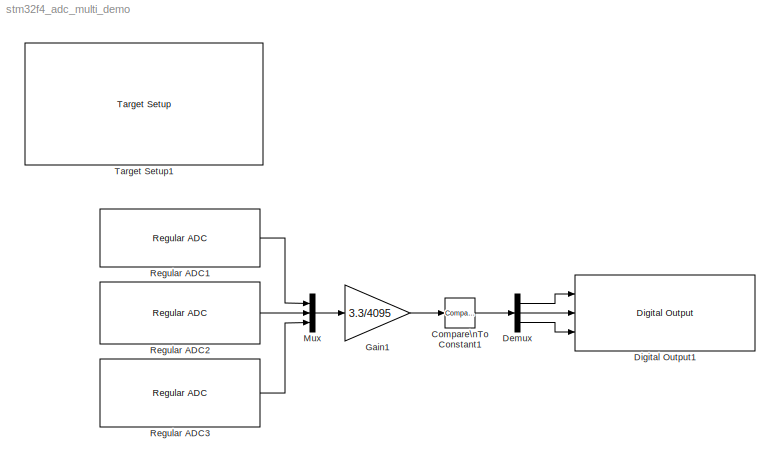
MODEL stm32f4_adc_multi_demo
KIND model
CONFIG PreLoadFcn = waijung.modelPreload; % Required for working with Waijung Blockset. Do not remove.
BLOCK [Reference] Compare\nTo Constant1  REF=simulink/Logic and Bit\nOperations/Compare\nTo Constant
  FunctionWithSeparateData = off
  LogicOutDataTypeMode = boolean
  Ports = [1, 1]
  RTWMemSecDataConstants = Inherit from model
  RTWMemSecDataInternal = Inherit from model
  RTWMemSecDataParameters = Inherit from model
  RTWMemSecFuncExecute = Inherit from model
  RTWMemSecFuncInitTerm = Inherit from model
  ShowPortLabels = FromPortIcon
  SourceBlock = simulink/Logic and Bit\nOperations/Compare\nTo Constant
  SourceType = Compare To Constant
  SystemSampleTime = -1
  ZeroCross = off
  const = 1.5
  relop = >=
BLOCK [Demux] Demux
  DisplayOption = bar
  Outputs = 3
  Ports = [1, 3]
BLOCK [Reference] Digital Output1  REF=stm32f4_io_lib/Digital Output
  Ports = [3]
  SourceBlock = stm32f4_io_lib/Digital Output
  SourceType = stm32f4_digital_output
  bitbandingstr = \n#define DigitalOutput1_D12 Peripheral_BB(GPIOD->ODR, 12)  /* Output pin */\n#define DigitalOutput1_D13 Peripheral_BB(GPIOD->ODR, 13)  /* Output pin */\n#define DigitalOutput1_D14 Peripheral_BB(GPIOD->ODR, 14)  /* Output pin */
  blockid = DigitalOutput1
  cinputportlabel = In1, In2
  coutputportlabel = 0
  enablecustomportlabel = off
  globalinit = off
  pinstr = GPIO_Pin_12 | GPIO_Pin_13 | GPIO_Pin_14
  port = D
  porttype = Push Pull
  porttypestr = PP
  sampletime = -1
  sampletimestr = 0.01
  speed = 100
  use_bitband = on
  use_pin0 = off
  use_pin1 = off
  use_pin10 = off
  use_pin11 = off
  use_pin12 = on
  use_pin13 = on
  use_pin14 = on
  use_pin15 = off
  use_pin2 = off
  use_pin3 = off
  use_pin4 = off
  use_pin5 = off
  use_pin6 = off
  use_pin7 = off
  use_pin8 = off
  use_pin9 = off
  usedpinarray = [0  0  0  0  0  0  0  0  0  0  0  0  1  1  1  0]
BLOCK [Gain] Gain1
  Gain = 3.3/4095
  OutDataType = fixdt(1, 16)
  OutDataTypeMode = single
  OutDataTypeStr = single
  OutScaling = 2^0
  ParamDataTypeStr = single
  ParameterDataType = fixdt(1, 16)
  ParameterDataTypeMode = single
  ParameterScaling = 2^0
  SaturateOnIntegerOverflow = off
BLOCK [Mux] Mux
  DisplayOption = bar
  Inputs = 3
  Ports = [3, 1]
BLOCK [Reference] Regular ADC1  REF=stm32f4_adc_lib/Regular ADC
  Ports = [0, 1]
  SourceBlock = stm32f4_adc_lib/Regular ADC
  SourceType = stm32f4_regular_adc
  adcmodule = 1
  blockid = RegularADC1
  chsamplingtime = Auto
  chsamplingtimestr = ADC_SampleTime_480Cycles
  cinputportlabel = 0
  coutputportlabel = Out1, Out2
  enablecustomportlabel = off
  outputdatatype = Single
  pinstr = GPIO_Pin_1
  prescaler = 2
  prescalerstr = ADC_Prescaler_Div2
  read_an0 = off
  read_an1 = on
  read_an10 = off
  read_an11 = off
  read_an12 = off
  read_an13 = off
  read_an14 = off
  read_an15 = off
  read_an16 = off
  read_an17 = off
  read_an18 = off
  read_an2 = off
  read_an3 = off
  read_an4 = off
  read_an5 = off
  read_an6 = off
  read_an7 = off
  read_an8 = off
  read_an9 = off
  sampletime = 0.01
  usedpinarray = [0  1  0  0  0  0  0  0  0  0  0  0  0  0  0  0  0  0  0]
  usedpinidarray = [1]
  usedpinidcount = 1
  usedportidarray = [0]
BLOCK [Reference] Regular ADC2  REF=stm32f4_adc_lib/Regular ADC
  Ports = [0, 1]
  SourceBlock = stm32f4_adc_lib/Regular ADC
  SourceType = stm32f4_regular_adc
  adcmodule = 2
  blockid = RegularADC2
  chsamplingtime = Auto
  chsamplingtimestr = ADC_SampleTime_480Cycles
  cinputportlabel = 0
  coutputportlabel = Out1, Out2
  enablecustomportlabel = off
  outputdatatype = Single
  pinstr = GPIO_Pin_2
  prescaler = 2
  prescalerstr = ADC_Prescaler_Div2
  read_an0 = off
  read_an1 = off
  read_an10 = off
  read_an11 = off
  read_an12 = off
  read_an13 = off
  read_an14 = off
  read_an15 = off
  read_an16 = off
  read_an17 = off
  read_an18 = off
  read_an2 = on
  read_an3 = off
  read_an4 = off
  read_an5 = off
  read_an6 = off
  read_an7 = off
  read_an8 = off
  read_an9 = off
  sampletime = 0.01
  usedpinarray = [0  0  1  0  0  0  0  0  0  0  0  0  0  0  0  0  0  0  0]
  usedpinidarray = [2]
  usedpinidcount = 1
  usedportidarray = [0]
BLOCK [Reference] Regular ADC3  REF=stm32f4_adc_lib/Regular ADC
  Ports = [0, 1]
  SourceBlock = stm32f4_adc_lib/Regular ADC
  SourceType = stm32f4_regular_adc
  adcmodule = 3
  blockid = RegularADC3
  chsamplingtime = Auto
  chsamplingtimestr = ADC_SampleTime_480Cycles
  cinputportlabel = 0
  coutputportlabel = Out1, Out2
  enablecustomportlabel = off
  outputdatatype = Single
  pinstr = GPIO_Pin_3
  prescaler = 2
  prescalerstr = ADC_Prescaler_Div2
  read_an0 = off
  read_an1 = off
  read_an10 = off
  read_an11 = off
  read_an12 = off
  read_an13 = off
  read_an14 = off
  read_an15 = off
  read_an16 = off
  read_an17 = off
  read_an18 = off
  read_an2 = off
  read_an3 = on
  read_an4 = off
  read_an5 = off
  read_an6 = off
  read_an7 = off
  read_an8 = off
  read_an9 = off
  sampletime = 0.01
  usedpinarray = [0  0  0  1  0  0  0  0  0  0  0  0  0  0  0  0  0  0  0]
  usedpinidarray = [3]
  usedpinidcount = 1
  usedportidarray = [0]
BLOCK [Reference] Target Setup1  REF=stm32f4_device_config_lib/Target Setup
  Ports = []
  Priority = 100
  SourceBlock = stm32f4_device_config_lib/Target Setup
  SourceType = stm32f4_target_setup
  assemblercontrolstr = $(patsubst %, -I%, .) -mcpu=cortex-m4 -mthumb -mthumb-interwork -mfloat-abi=hard -mfpu=fpv4-sp-d16 -ffast-math -Wall -Wextra -Ofast -Wa,-amhls=$(<:.s=.lst) -D__STACK_SIZE=$(STACK_SIZE) -D__HEAP_SIZE=$(HEAP_SIZE)
  blockid = TargetSetup1
  clockconfig = HSEOSC-8MHz
  compiler = GNU ARM
  compilercontrolstr = $(patsubst %, -I%, .) -mcpu=cortex-m4 -mthumb -mthumb-interwork -mfloat-abi=hard -mfpu=fpv4-sp-d16 -ffast-math -Wall -Wextra -Ofast
  editctrlstr = on
  enableautocompiledownload = on
  execprofile = None
  flashlength = 1024k
  flashorigin = 0x8000000
  fullchiperase = off
  hclk = 168000000
  heapsize = 0x200
  hseval = 8000000
  lastprofileruart = 3
  linkercontrolstr = -T$(LD_SCRIPT) -g -Wl,-Map=$(MAP),--cref,--no-warn-mismatch -mcpu=cortex-m4 -mthumb -mthumb-interwork -mfloat-abi=hard -mfpu=fpv4-sp-d16 -specs=nosys.specs
  manualsetsampletime = off
  mcu = STM32F417IG (LQFP176)
  mcustr = STM32F417IG
  previous_compiler = GNU ARM
  profilerbaud = 500000
  profilerinitstr = 0.01,168000000,1680000,500000,0
  profilertxpin = D8
  profileruart = 3
  programmerinterface = ST-Link
  ramlength = 128k
  ramorigin = 0x20000000
  runafterdownload = on
  sampletime = 0.01
  showmemoryconfiguration = off
  stacksize = 0x400
  system_stm32f4xx_c_path = <path>
  systickreloadvalue = 1680000
  useextram = off
LINE Compare\nTo Constant1:1 -> Demux:1
LINE Demux:1 -> Digital Output1:1
LINE Demux:2 -> Digital Output1:2
LINE Demux:3 -> Digital Output1:3
LINE Gain1:1 -> Compare\nTo Constant1:1
LINE Mux:1 -> Gain1:1
LINE Regular ADC1:1 -> Mux:1
LINE Regular ADC2:1 -> Mux:2
LINE Regular ADC3:1 -> Mux:3
note: 1 file-system path scrubbed to <path> (not preserved elsewhere — flat text is the only slx artifact)
